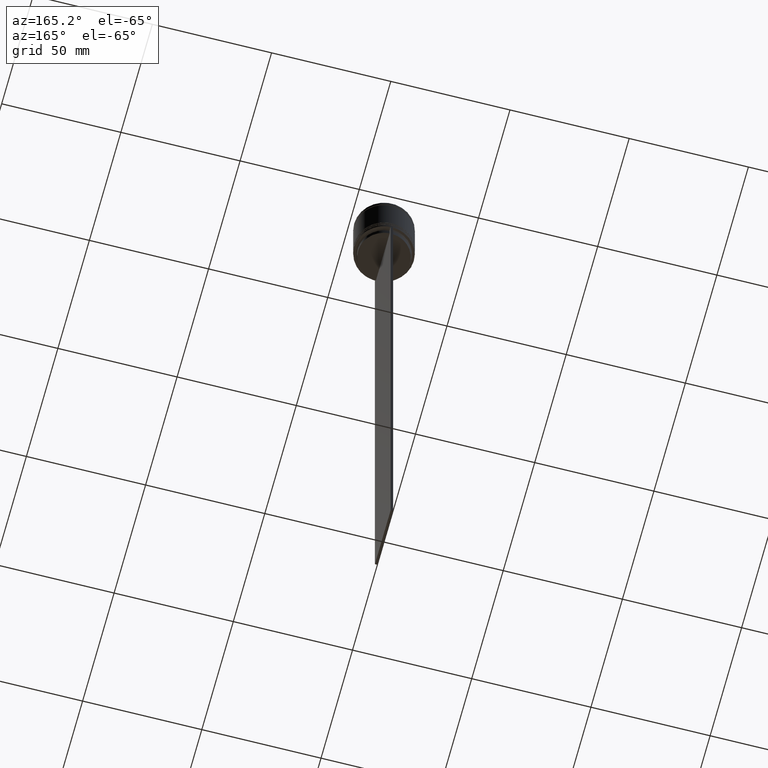
[diagram: clean part render]
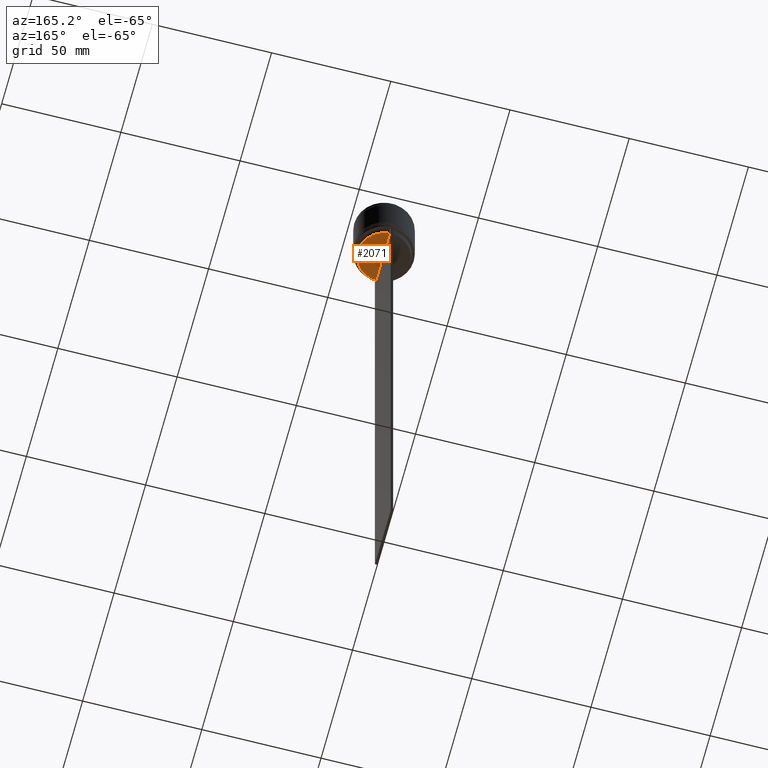
[diagram: same view with one face highlighted and labeled with its STEP entity id]
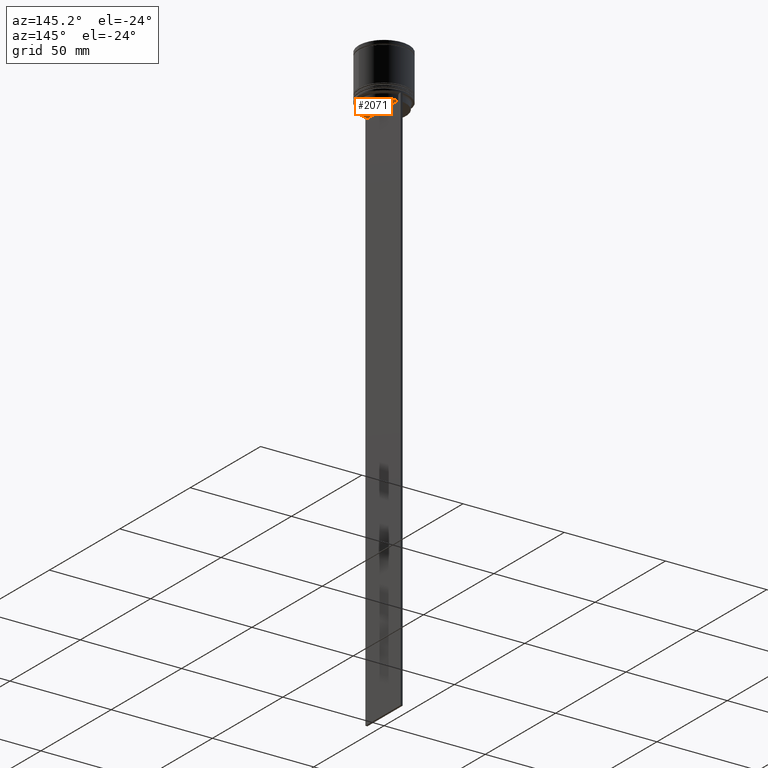
[diagram: same view with one face highlighted and labeled with its STEP entity id]
A machine part, auxiliary view. The second image highlights one B-rep face of the part: STEP entity #2071.
A second angle (auxiliary view) of the same face is appended — the face is thin or edge-on in the first view.
In plain terms, the highlighted planar face has unit normal (0, -0, 1).
Its self-contained STEP definition (entity closure, byte-faithful):
#56 = DIRECTION ( 'NONE',  ( 0.000000000000000000, -1.000000000000000000, 0.000000000000000000 ) ) ;
#68 = LINE ( 'NONE', #1038, #1517 ) ;
#246 = CARTESIAN_POINT ( 'NONE',  ( 0.000000000000000000, 0.000000000000000000, -25.50000000000000000 ) ) ;
#254 = CARTESIAN_POINT ( 'NONE',  ( 0.5000000000000000000, 10.88852607105296855, -25.50000000000000000 ) ) ;
#366 = VERTEX_POINT ( 'NONE', #254 ) ;
#561 = DIRECTION ( 'NONE',  ( 1.000000000000000000, 0.000000000000000000, 0.000000000000000000 ) ) ;
#568 = DIRECTION ( 'NONE',  ( 0.000000000000000000, -0.000000000000000000, 1.000000000000000000 ) ) ;
#612 = AXIS2_PLACEMENT_3D ( 'NONE', #1991, #568, #561 ) ;
#629 = VERTEX_POINT ( 'NONE', #1429 ) ;
#682 = CIRCLE ( 'NONE', #1843, 10.90000000000000924 ) ;
#731 = DIRECTION ( 'NONE',  ( 1.000000000000000000, 0.000000000000000000, 0.000000000000000000 ) ) ;
#756 = ORIENTED_EDGE ( 'NONE', *, *, #1218, .F. ) ;
#773 = AXIS2_PLACEMENT_3D ( 'NONE', #1051, #1994, #731 ) ;
#904 = DIRECTION ( 'NONE',  ( 1.000000000000000000, 0.000000000000000000, 0.000000000000000000 ) ) ;
#952 = CIRCLE ( 'NONE', #773, 10.90000000000000924 ) ;
#983 = VERTEX_POINT ( 'NONE', #1747 ) ;
#1038 = CARTESIAN_POINT ( 'NONE',  ( 0.5000000000000000000, 10.90000000000000924, -25.50000000000000000 ) ) ;
#1051 = CARTESIAN_POINT ( 'NONE',  ( 0.000000000000000000, 0.000000000000000000, -25.50000000000000000 ) ) ;
#1194 = FACE_OUTER_BOUND ( 'NONE', #2067, .T. ) ;
#1197 = DIRECTION ( 'NONE',  ( -0.000000000000000000, -0.000000000000000000, 1.000000000000000000 ) ) ;
#1199 = EDGE_CURVE ( 'NONE', #629, #983, #682, .T. ) ;
#1218 = EDGE_CURVE ( 'NONE', #983, #366, #952, .T. ) ;
#1372 = ORIENTED_EDGE ( 'NONE', *, *, #1199, .F. ) ;
#1417 = ORIENTED_EDGE ( 'NONE', *, *, #1565, .F. ) ;
#1429 = CARTESIAN_POINT ( 'NONE',  ( 0.5000000000000000000, -10.88852607105296855, -25.50000000000000000 ) ) ;
#1516 = PLANE ( 'NONE',  #612 ) ;
#1517 = VECTOR ( 'NONE', #56, 1000.000000000000000 ) ;
#1565 = EDGE_CURVE ( 'NONE', #366, #629, #68, .T. ) ;
#1747 = CARTESIAN_POINT ( 'NONE',  ( 10.90000000000000924, 0.000000000000000000, -25.50000000000000000 ) ) ;
#1843 = AXIS2_PLACEMENT_3D ( 'NONE', #246, #1197, #904 ) ;
#1991 = CARTESIAN_POINT ( 'NONE',  ( 0.000000000000000000, 10.90000000000000924, -25.50000000000000000 ) ) ;
#1994 = DIRECTION ( 'NONE',  ( -0.000000000000000000, -0.000000000000000000, 1.000000000000000000 ) ) ;
#2067 = EDGE_LOOP ( 'NONE', ( #1417, #756, #1372 ) ) ;
#2071 = ADVANCED_FACE ( 'NONE', ( #1194 ), #1516, .F. ) ;